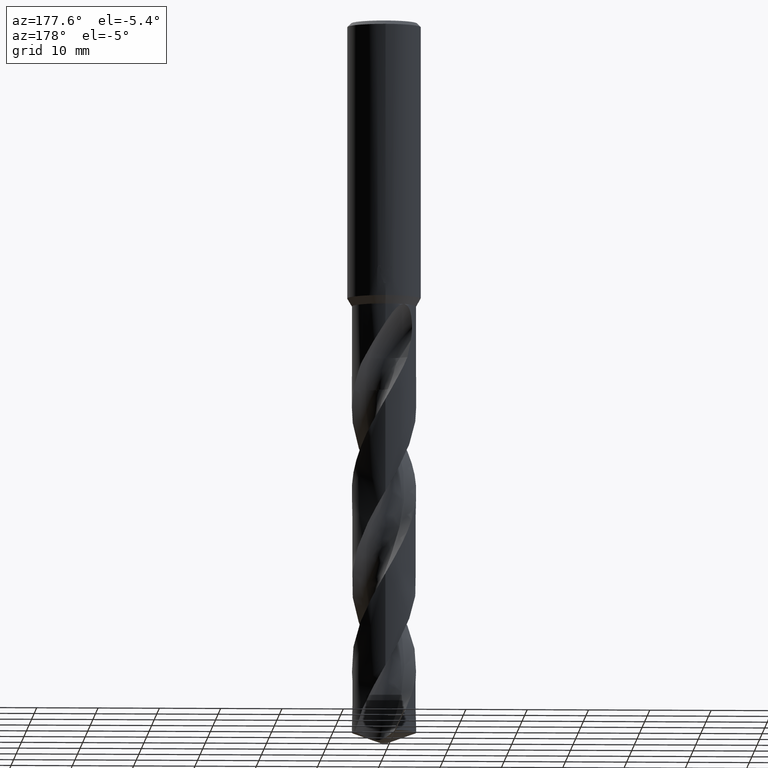
[diagram: clean part render]
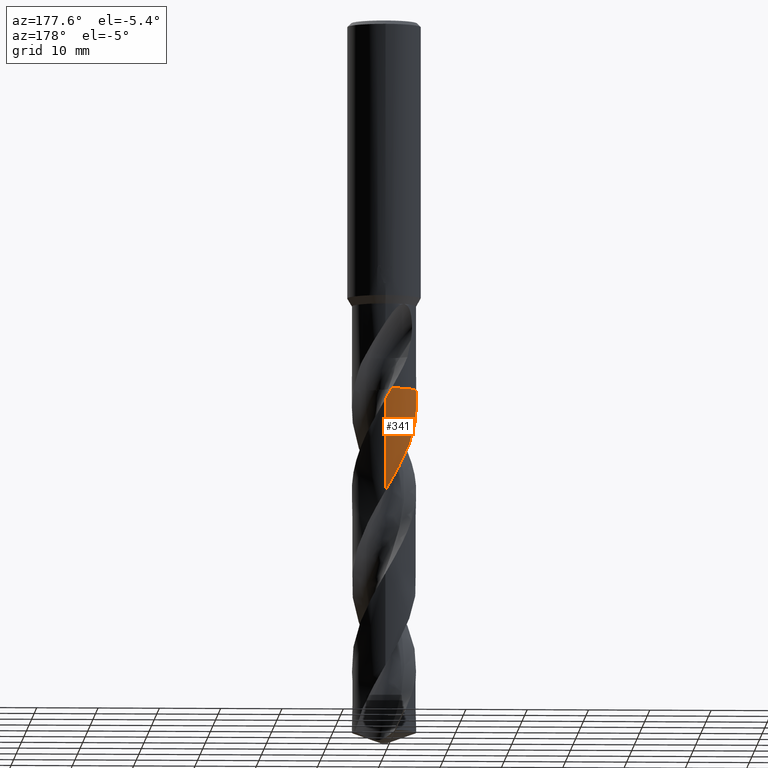
[diagram: same view with one face highlighted and labeled with its STEP entity id]
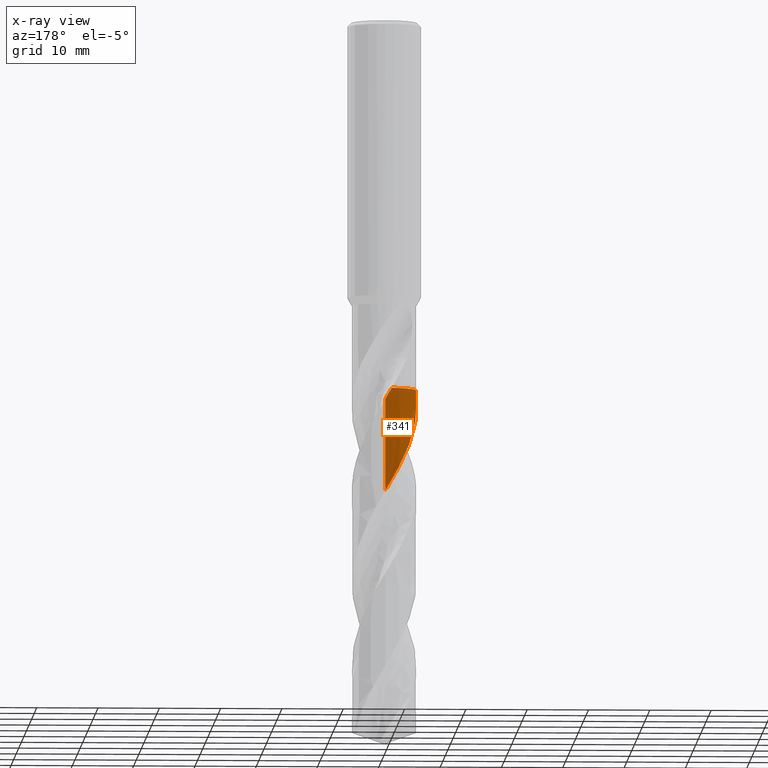
[diagram: x-ray of the same camera — body ghosted, the highlighted face saturated]
A machine part, auxiliary view. The second image highlights one B-rep face of the part: STEP entity #341.
The next image is the same camera in x-ray: the body ghosted, the highlighted face saturated — about 0% of this face is hidden behind the body in this view.
In plain terms, the highlighted conical surface has half-angle 0 deg.
Its self-contained STEP definition (entity closure, byte-faithful):
#311=EDGE_CURVE('',#509,#683,#868,.T.);
#323=EDGE_CURVE('',#683,#623,#880,.T.);
#341=ADVANCED_FACE('',(#900),#901,.T.);
#421=VERTEX_POINT('',#990);
#509=VERTEX_POINT('',#1083);
#565=EDGE_CURVE('',#421,#733,#1147,.T.);
#617=EDGE_CURVE('',#733,#509,#1201,.T.);
#623=VERTEX_POINT('',#1208);
#653=EDGE_CURVE('',#691,#421,#1241,.T.);
#673=EDGE_CURVE('',#623,#691,#1262,.T.);
#683=VERTEX_POINT('',#1273);
#691=VERTEX_POINT('',#1282);
#733=VERTEX_POINT('',#1328);
#868=CIRCLE('',#1472,5.2499);
#880=B_SPLINE_CURVE_WITH_KNOTS('',3,(#1610,#1611,#1612,#1613),.UNSPECIFIED.,.F.,.F.,(4,4),(0.0,0.0110890662604315),.UNSPECIFIED.);
#900=FACE_OUTER_BOUND('',#1897,.T.);
#901=CONICAL_SURFACE('',#1898,5.24995,1.78606013488114E-006);
#990=CARTESIAN_POINT('',(-6.70451843091417E-013,5.24993013062096,-76.9698804554667));
#1083=CARTESIAN_POINT('',(-5.03573748432352,-1.48418260297683,-60.1));
#1147=B_SPLINE_CURVE_WITH_KNOTS('',3,(#5985,#5986,#5987,#5988,#5989,#5990,#5991,#5992,#5993,#5994,#5995,#5996,#5997,#5998,#5999,#6000,#6001,#6002,#6003,#6004,#6005,#6006,#6007,#6008,#6009,#6010,#6011,#6012,#6013,#6014,#6015,#6016,#6017,#6018,#6019,#6020,#6021,#6022,#6023,#6024,#6025,#6026,#6027,#6028,#6029,#6030,#6031,#6032,#6033,#6034,#6035,#6036,#6037,#6038,#6039,#6040,#6041,#6042,#6043,#6044,#6045,#6046,#6047,#6048),.UNSPECIFIED.,.F.,.F.,(4,2,2,2,2,2,2,2,2,2,2,2,2,2,2,2,2,2,2,2,2,2,2,2,2,2,2,2,2,2,2,4),(0.0,0.133614309053159,6.947047606834,7.01043589031789,10.1596415145816,12.4900220220781,15.8006035883681,16.5198988402468,19.9965442720657,22.0001956566345,24.0337318888463,26.1665653882187,28.9980808228495,31.2685795355509,33.3044559428812,36.161056537466,38.7329111018574,39.5016257764641,43.1078530316749,44.1985793364627,46.2545513277273,47.2744237563938,49.2897238244068,51.7474840672492,54.0519275921716,56.8122949888454,57.846501237301,59.6675398299275,59.752785181565,62.4442945586902,63.7882086446928,65.1254882091745),.UNSPECIFIED.);
#1201=B_SPLINE_CURVE_WITH_KNOTS('',3,(#6308,#6309,#6310,#6311),.UNSPECIFIED.,.F.,.F.,(4,4),(0.0,0.0137513675390887),.UNSPECIFIED.);
#1208=CARTESIAN_POINT('',(-1.05248799813792,5.14331790943763,-60.1050000000001));
#1241=LINE('',#6488,#6489);
#1262=B_SPLINE_CURVE_WITH_KNOTS('',3,(#6615,#6616,#6617,#6618,#6619,#6620,#6621,#6622,#6623,#6624,#6625,#6626,#6627,#6628,#6629,#6630,#6631,#6632,#6633,#6634,#6635,#6636,#6637,#6638,#6639,#6640,#6641,#6642,#6643,#6644,#6645,#6646,#6647,#6648,#6649,#6650,#6651,#6652,#6653,#6654,#6655,#6656,#6657,#6658,#6659,#6660,#6661,#6662,#6663,#6664,#6665,#6666,#6667,#6668,#6669,#6670,#6671,#6672,#6673,#6674,#6675,#6676,#6677,#6678,#6679,#6680,#6681,#6682,#6683,#6684,#6685,#6686,#6687,#6688),.UNSPECIFIED.,.F.,.F.,(4,2,2,2,2,2,2,2,2,2,2,2,2,2,2,2,2,2,2,2,2,2,2,2,2,2,2,2,2,2,2,2,2,2,2,2,4),(0.0,2.54047131449813,3.50044940706205,5.41581494924477,5.51130516666848,7.07432774951799,8.02535364321968,10.4241811678733,14.4905961102342,18.5947523863624,20.6236054654033,21.9832312747462,24.1075747763209,25.1268001239752,26.480556497629,28.5998536840516,32.0152387401748,34.6366637155742,35.8674921510403,38.7552224526503,40.0899791251008,42.4411691849065,43.4587177437936,44.8027606284073,46.9296050140113,47.9476423830897,49.2368458162637,52.2802878279404,53.8126135889414,56.1305731694062,60.4297657595829,61.5002411863092,63.1076737523334,63.9108904380349,64.3123519475589,64.5129513138187,64.7134291890293),.UNSPECIFIED.);
#1273=CARTESIAN_POINT('',(-1.05532383153509,5.14273678313348,-60.1));
#1282=CARTESIAN_POINT('',(-2.98575904294831E-015,5.2499032840348,-61.9387033770496));
#1328=CARTESIAN_POINT('',(-5.03655410229585,-1.48140909922889,-60.1050000000001));
#1472=AXIS2_PLACEMENT_3D('',#9272,#9273,#9274);
#1610=CARTESIAN_POINT('',(-1.05532383153509,5.14273678313347,-60.1));
#1611=CARTESIAN_POINT('',(-1.05350961130406,5.14310907903762,-60.1031989129568));
#1612=CARTESIAN_POINT('',(-1.05169520282188,5.14348041313234,-60.1063978304742));
#1613=CARTESIAN_POINT('',(-1.04988060680483,5.14385078529945,-60.1095967537171));
#1897=EDGE_LOOP('',(#9304,#9305,#9306,#9307,#9308,#9309));
#1898=AXIS2_PLACEMENT_3D('',#9310,#9311,#9312);
#5985=CARTESIAN_POINT('',(-4.82547408562634,-2.06816339996352,-116.089156270102));
#5986=CARTESIAN_POINT('',(-4.81672880563249,-2.08856786120338,-116.05054512327));
#5987=CARTESIAN_POINT('',(-4.80788304211385,-2.10885057791293,-116.012011264179));
#5988=CARTESIAN_POINT('',(-4.34038929822407,-3.16254256765086,-114.00628168191));
#5989=CARTESIAN_POINT('',(-3.55927839899706,-4.0214587484569,-112.115938517468));
#5990=CARTESIAN_POINT('',(-2.56474596113029,-4.58089260596421,-110.13202583022));
#5991=CARTESIAN_POINT('',(-2.55557705306627,-4.58601402987907,-110.113760761673));
#5992=CARTESIAN_POINT('',(-2.0890134466397,-4.84478214678042,-109.186222803655));
#5993=CARTESIAN_POINT('',(-1.59541204385531,-5.02924377218944,-108.292113821885));
#5994=CARTESIAN_POINT('',(-0.700433677915788,-5.21756676819313,-106.714626558666));
#5995=CARTESIAN_POINT('',(-0.313130523145715,-5.25492809021645,-106.039015607267));
#5996=CARTESIAN_POINT('',(0.624303800217869,-5.24168545230853,-104.415305651876));
#5997=CARTESIAN_POINT('',(1.16900722508522,-5.14751598506397,-103.480291840405));
#5998=CARTESIAN_POINT('',(1.80159969760462,-4.93261600990255,-102.320191702492));
#5999=CARTESIAN_POINT('',(1.91291358891115,-4.89052233116246,-102.112705656789));
#6000=CARTESIAN_POINT('',(2.55457511515442,-4.62258729508006,-100.904805999601));
#6001=CARTESIAN_POINT('',(3.04627067710778,-4.31455920598659,-99.9244350422312));
#6002=CARTESIAN_POINT('',(3.72757104270702,-3.7118702984879,-98.3496508954433));
#6003=CARTESIAN_POINT('',(3.95527363170038,-3.46829588151631,-97.7699053527652));
#6004=CARTESIAN_POINT('',(4.36519473614972,-2.93626601754719,-96.6092492473044));
#6005=CARTESIAN_POINT('',(4.54534280797358,-2.64888512746343,-96.0288708663596));
#6006=CARTESIAN_POINT('',(4.85529214143599,-2.02837754497103,-94.8316589048572));
#6007=CARTESIAN_POINT('',(4.98096803836649,-1.69623636892718,-94.2148284737755));
#6008=CARTESIAN_POINT('',(5.19341389221064,-0.900625230554157,-92.7886552713995));
#6009=CARTESIAN_POINT('',(5.25316528409195,-0.432609781670017,-91.986440405305));
#6010=CARTESIAN_POINT('',(5.24714261514264,0.414148006654752,-90.5219254249875));
#6011=CARTESIAN_POINT('',(5.20395607725204,0.789477265478358,-89.8656879172835));
#6012=CARTESIAN_POINT('',(5.04612746735392,1.48764694306495,-88.6293613207936));
#6013=CARTESIAN_POINT('',(4.93978595412084,1.80969354189861,-88.0490846781227));
#6014=CARTESIAN_POINT('',(4.61152467344617,2.5536672512468,-86.6447867069188));
#6015=CARTESIAN_POINT('',(4.36199697399897,2.9598557716772,-85.8195556615525));
#6016=CARTESIAN_POINT('',(3.78962924403319,3.65836942930772,-84.2616390723343));
#6017=CARTESIAN_POINT('',(3.47972512627041,3.95405242563857,-83.5315206775795));
#6018=CARTESIAN_POINT('',(3.03658705182309,4.28452939874721,-82.5712074256115));
#6019=CARTESIAN_POINT('',(2.93206302978339,4.35673104918181,-82.3497057884547));
#6020=CARTESIAN_POINT('',(2.32087137480646,4.74685420194347,-81.0906843887604));
#6021=CARTESIAN_POINT('',(1.76607779340564,4.97996972040743,-80.0757682036314));
#6022=CARTESIAN_POINT('',(1.00758250704121,5.15550802175568,-78.7258464609713));
#6023=CARTESIAN_POINT('',(0.82987996137321,5.18707215909191,-78.4111720819138));
#6024=CARTESIAN_POINT('',(0.31280554610403,5.2516518867719,-77.5069708099643));
#6025=CARTESIAN_POINT('',(-0.0291049581139657,5.26098691672402,-76.9205760622712));
#6026=CARTESIAN_POINT('',(-0.53970045173501,5.22487113932323,-76.0385319432969));
#6027=CARTESIAN_POINT('',(-0.708110081672116,5.20470806465986,-75.7464957021363));
#6028=CARTESIAN_POINT('',(-1.20490401510566,5.12072766920645,-74.8753858030773));
#6029=CARTESIAN_POINT('',(-1.52810465183988,5.0337295819215,-74.2932337147845));
#6030=CARTESIAN_POINT('',(-2.22316893021659,4.77341848132082,-73.0094533535949));
#6031=CARTESIAN_POINT('',(-2.58711485567066,4.58638509403293,-72.3115105146328));
#6032=CARTESIAN_POINT('',(-3.24340876397704,4.1458715855776,-70.9454597615708));
#6033=CARTESIAN_POINT('',(-3.53626158268543,3.89906715600075,-70.2797077087911));
#6034=CARTESIAN_POINT('',(-4.11614671464514,3.29070893662133,-68.8268443061405));
#6035=CARTESIAN_POINT('',(-4.38722688034868,2.91945181262183,-68.0451937468307));
#6036=CARTESIAN_POINT('',(-4.68889942678136,2.36752803338064,-66.956791736318));
#6037=CARTESIAN_POINT('',(-4.76352659841618,2.21350562754976,-66.6592160389183));
#6038=CARTESIAN_POINT('',(-4.94836413910205,1.77928198690901,-65.8407919047473));
#6039=CARTESIAN_POINT('',(-5.04226667648663,1.49260373222012,-65.3218268071548));
#6040=CARTESIAN_POINT('',(-5.11431241723572,1.18555687388948,-64.7757024367254));
#6041=CARTESIAN_POINT('',(-5.1174812758991,1.17180295094543,-64.7512654100342));
#6042=CARTESIAN_POINT('',(-5.2189727877261,0.723017805588229,-63.9547299720723));
#6043=CARTESIAN_POINT('',(-5.26159754311857,0.276840477953552,-63.1870261306319));
#6044=CARTESIAN_POINT('',(-5.23995568562571,-0.392555236635982,-62.0298884664794));
#6045=CARTESIAN_POINT('',(-5.21856147223638,-0.614391904212119,-61.6459152822113));
#6046=CARTESIAN_POINT('',(-5.14814776229124,-1.05210981614838,-60.876177488728));
#6047=CARTESIAN_POINT('',(-5.09925695808255,-1.26825424018063,-60.4892531490352));
#6048=CARTESIAN_POINT('',(-5.03651195196867,-1.48155238064644,-60.1047417004308));
#6308=CARTESIAN_POINT('',(-5.03767917039982,-1.4775786981982,-60.1119045535578));
#6309=CARTESIAN_POINT('',(-5.03703342385111,-1.47978029106957,-60.1079362890168));
#6310=CARTESIAN_POINT('',(-5.03638619520905,-1.48198159313562,-60.1039681044814));
#6311=CARTESIAN_POINT('',(-5.03573748432352,-1.48418260297684,-60.1));
#6488=CARTESIAN_POINT('',(-6.42453288562643E-016,5.24995,-88.0945781350512));
#6489=VECTOR('',#9656,1.0);
#6615=CARTESIAN_POINT('',(-1.05350008433381,5.14311069709876,-60.1032156011559));
#6616=CARTESIAN_POINT('',(-0.637838844983538,5.22825489256354,-60.8360775936598));
#6617=CARTESIAN_POINT('',(-0.213648793817985,5.26264511737389,-61.568791009171));
#6618=CARTESIAN_POINT('',(0.369820383711915,5.23931049971192,-62.5788438135145));
#6619=CARTESIAN_POINT('',(0.529468307136249,5.22559371823229,-62.8553355482783));
#6620=CARTESIAN_POINT('',(1.00516699267826,5.16268583986795,-63.6848113775353));
#6621=CARTESIAN_POINT('',(1.31746525099358,5.09194071036715,-64.2364293499462));
#6622=CARTESIAN_POINT('',(1.63644665377772,4.98836991922031,-64.8166491173359));
#6623=CARTESIAN_POINT('',(1.65157171525107,4.98338273499204,-64.8442023468855));
#6624=CARTESIAN_POINT('',(1.91387053854659,4.89556968055882,-65.3227600527712));
#6625=CARTESIAN_POINT('',(2.15462316016116,4.79449464015613,-65.7731762279294));
#6626=CARTESIAN_POINT('',(2.52826276719566,4.60376375167107,-66.4984784176114));
#6627=CARTESIAN_POINT('',(2.66620736973235,4.52526993103082,-66.7724776044205));
#6628=CARTESIAN_POINT('',(3.13874786124542,4.22727993103506,-67.7392006169049));
#6629=CARTESIAN_POINT('',(3.45180322093225,3.97579645181369,-68.4306052994244));
#6630=CARTESIAN_POINT('',(4.2104705668059,3.20845855405698,-70.2962633318196));
#6631=CARTESIAN_POINT('',(4.58943476646122,2.63794839797784,-71.4589205688904));
#6632=CARTESIAN_POINT('',(5.11157911630564,1.37915377100459,-73.8172595770833));
#6633=CARTESIAN_POINT('',(5.24763099235251,0.701668973079969,-74.9879970474292));
#6634=CARTESIAN_POINT('',(5.25102151577681,-0.320875366030927,-76.7582727798249));
#6635=CARTESIAN_POINT('',(5.21944916106228,-0.658707287342181,-77.3421589755373));
#6636=CARTESIAN_POINT('',(5.1126037767452,-1.21433831179743,-78.3196956117051));
#6637=CARTESIAN_POINT('',(5.05535243755271,-1.43409258345407,-78.7111394927867));
#6638=CARTESIAN_POINT('',(4.87282109719968,-1.9856833952664,-79.716863565392));
#6639=CARTESIAN_POINT('',(4.72770775457238,-2.3100488811829,-80.3294570101723));
#6640=CARTESIAN_POINT('',(4.46612437108945,-2.76487225892025,-81.2367878457987));
#6641=CARTESIAN_POINT('',(4.374165878436,-2.90817891928553,-81.5306845911526));
#6642=CARTESIAN_POINT('',(4.14414785264136,-3.23094858028897,-82.2154315057552));
#6643=CARTESIAN_POINT('',(4.00126839172647,-3.40627757820119,-82.6052289888089));
#6644=CARTESIAN_POINT('',(3.60708170784053,-3.83090728270174,-83.608023302162));
#6645=CARTESIAN_POINT('',(3.34088007952035,-4.06516859266674,-84.2193906388395));
#6646=CARTESIAN_POINT('',(2.58921940308282,-4.60249577352915,-85.8173197236214));
#6647=CARTESIAN_POINT('',(2.07463947178124,-4.85616153723231,-86.7951029548044));
#6648=CARTESIAN_POINT('',(1.1114816996917,-5.14953858708637,-88.5385428953017));
#6649=CARTESIAN_POINT('',(0.678626490706889,-5.22429401256532,-89.2919233117695));
#6650=CARTESIAN_POINT('',(0.0357533119072455,-5.25385761671749,-90.4037435902892));
#6651=CARTESIAN_POINT('',(-0.169848650081108,-5.25122109554291,-90.7586485600533));
#6652=CARTESIAN_POINT('',(-0.855053744991647,-5.20220400191365,-91.9480592712616));
#6653=CARTESIAN_POINT('',(-1.32891227181528,-5.10184558247569,-92.7786914226263));
#6654=CARTESIAN_POINT('',(-1.99246499289953,-4.86229365708227,-93.9975256497238));
#6655=CARTESIAN_POINT('',(-2.19703316763764,-4.77333838119514,-94.3819565880217));
#6656=CARTESIAN_POINT('',(-2.74442767254166,-4.49268296954952,-95.4465228790618));
#6657=CARTESIAN_POINT('',(-3.07260427984907,-4.27497956996325,-96.1247723520926));
#6658=CARTESIAN_POINT('',(-3.5037336187496,-3.91342306860381,-97.0976467368778));
#6659=CARTESIAN_POINT('',(-3.62861805190889,-3.79792068191768,-97.3912216920692));
#6660=CARTESIAN_POINT('',(-3.90501873658029,-3.5161696393959,-98.0730887853907));
#6661=CARTESIAN_POINT('',(-4.05174399762475,-3.34602170276595,-98.4604275032316));
#6662=CARTESIAN_POINT('',(-4.40121559834271,-2.88400711577126,-99.4632416865793));
#6663=CARTESIAN_POINT('',(-4.58620212151318,-2.57976416670149,-100.077028905943));
#6664=CARTESIAN_POINT('',(-4.81226354786522,-2.105530435612,-100.985499230238));
#6665=CARTESIAN_POINT('',(-4.87796387009469,-1.94849983206303,-101.279298266597));
#6666=CARTESIAN_POINT('',(-5.00935635003272,-1.58588379622995,-101.945640407378));
#6667=CARTESIAN_POINT('',(-5.07017781165634,-1.37908545844086,-102.317241326205));
#6668=CARTESIAN_POINT('',(-5.23129752838006,-0.6738189807585,-103.569257531726));
#6669=CARTESIAN_POINT('',(-5.27203188955338,-0.164161696673022,-104.44554160911));
#6670=CARTESIAN_POINT('',(-5.22194969647355,0.599333205739938,-105.767425912979));
#6671=CARTESIAN_POINT('',(-5.18650204339909,0.853222929024502,-106.208841255423));
#6672=CARTESIAN_POINT('',(-5.05137054735381,1.48183114147135,-107.321903917477));
#6673=CARTESIAN_POINT('',(-4.92836489238354,1.85031464674416,-107.991303191992));
#6674=CARTESIAN_POINT('',(-4.46448077663525,2.85431817956595,-109.904046034614));
#6675=CARTESIAN_POINT('',(-4.03237580277352,3.43781275430611,-111.132205134491));
#6676=CARTESIAN_POINT('',(-3.36297210073801,4.03545023087649,-112.684593190829));
#6677=CARTESIAN_POINT('',(-3.22352038819878,4.14769341217314,-112.993968284453));
#6678=CARTESIAN_POINT('',(-2.86102337359918,4.4101203358633,-113.768176010517));
#6679=CARTESIAN_POINT('',(-2.63162285440757,4.55074042671799,-114.232169886123));
#6680=CARTESIAN_POINT('',(-2.27289864495411,4.73438914562427,-114.929018244232));
#6681=CARTESIAN_POINT('',(-2.15105428161286,4.79097988309998,-115.161095763506));
#6682=CARTESIAN_POINT('',(-1.96523141239827,4.86876384371672,-115.509301331109));
#6683=CARTESIAN_POINT('',(-1.90281389555019,4.89349541496756,-115.625325320489));
#6684=CARTESIAN_POINT('',(-1.80852230838908,4.92877944825967,-115.799347240494));
#6685=CARTESIAN_POINT('',(-1.77699443210277,4.9402339557646,-115.857327564389));
#6686=CARTESIAN_POINT('',(-1.7137444479779,4.96252975086007,-115.973258612639));
#6687=CARTESIAN_POINT('',(-1.68202498980315,4.97337049746098,-116.031197014404));
#6688=CARTESIAN_POINT('',(-1.6502086773576,4.98390522794862,-116.089156270102));
#9272=CARTESIAN_POINT('',(0.0,0.0,-60.1));
#9273=DIRECTION('',(0.0,0.0,-1.0));
#9274=DIRECTION('',(0.0,1.0,0.0));
#9304=ORIENTED_EDGE('',*,*,#653,.T.);
#9305=ORIENTED_EDGE('',*,*,#565,.T.);
#9306=ORIENTED_EDGE('',*,*,#617,.T.);
#9307=ORIENTED_EDGE('',*,*,#311,.T.);
#9308=ORIENTED_EDGE('',*,*,#323,.T.);
#9309=ORIENTED_EDGE('',*,*,#673,.T.);
#9310=CARTESIAN_POINT('',(0.0,0.0,-88.0945781350512));
#9311=DIRECTION('',(0.0,-0.0,-1.0));
#9312=DIRECTION('',(0.0,1.0,0.0));
#9656=DIRECTION('',(-2.18722058948314E-022,1.78606013488019E-006,-0.999999999998405));